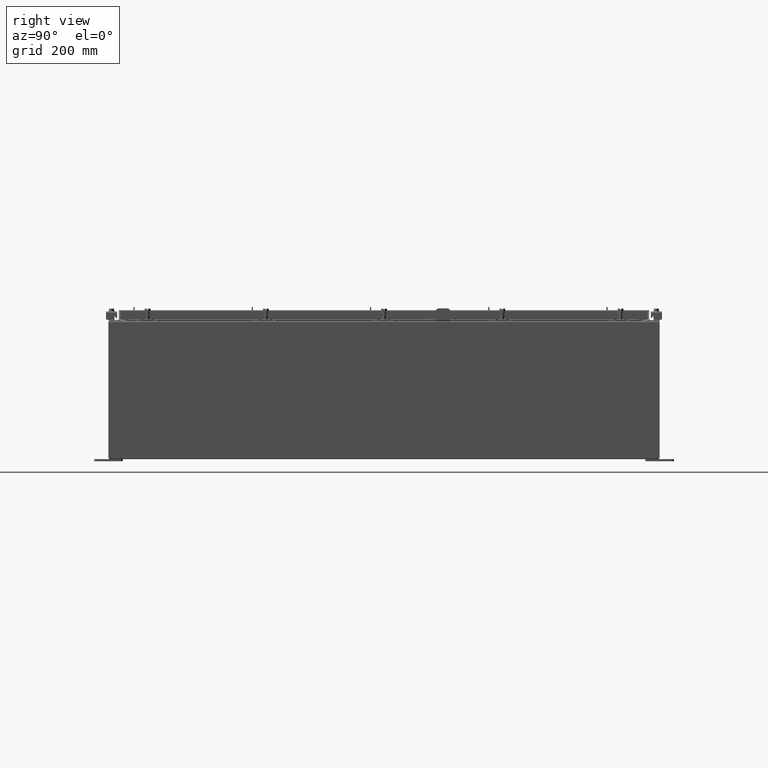
[diagram: clean part render]
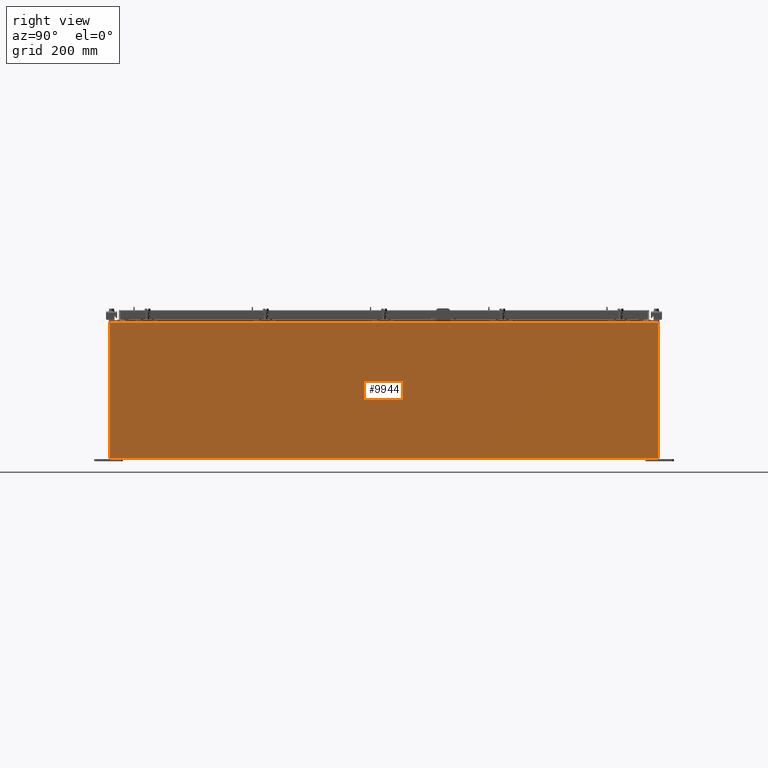
[diagram: same view with one face highlighted and labeled with its STEP entity id]
A machine part, right view. The second image highlights one B-rep face of the part: STEP entity #9944.
In plain terms, the highlighted planar face has unit normal (-1, 0, 0).
Its self-contained STEP definition (entity closure, byte-faithful):
#195 = VECTOR ( 'NONE', #417, 39.37007874015748100 ) ;
#417 = DIRECTION ( 'NONE',  ( -1.590339826456887700E-031, -1.000000000000000000, -4.567295697298285000E-017 ) ) ;
#587 = CARTESIAN_POINT ( 'NONE',  ( 17.99999999999999600, -23.92529999999998900, -6.293710784286996200E-014 ) ) ;
#1613 = DIRECTION ( 'NONE',  ( 3.482016343714355100E-015, 0.0000000000000000000, 1.000000000000000000 ) ) ;
#1859 = LINE ( 'NONE', #7869, #6873 ) ;
#2365 = VERTEX_POINT ( 'NONE', #3868 ) ;
#3512 = ORIENTED_EDGE ( 'NONE', *, *, #24194, .F. ) ;
#3601 = VECTOR ( 'NONE', #4806, 39.37007874015748100 ) ;
#3702 = PLANE ( 'NONE',  #11886 ) ;
#3868 = CARTESIAN_POINT ( 'NONE',  ( 17.99999999999999600, -23.92529999999998900, 0.01299999999999897800 ) ) ;
#4806 = DIRECTION ( 'NONE',  ( -3.482016343714355500E-015, 0.0000000000000000000, -1.000000000000000000 ) ) ;
#6506 = LINE ( 'NONE', #15295, #195 ) ;
#6873 = VECTOR ( 'NONE', #24745, 39.37007874015748100 ) ;
#7860 = EDGE_CURVE ( 'NONE', #9847, #2365, #14895, .T. ) ;
#7869 = CARTESIAN_POINT ( 'NONE',  ( 17.99999999999999600, 23.92529999999998900, -6.293710784286996200E-014 ) ) ;
#7940 = CARTESIAN_POINT ( 'NONE',  ( 17.99999999999999600, 0.0000000000000000000, -6.293710784286996200E-014 ) ) ;
#8734 = EDGE_CURVE ( 'NONE', #20948, #21966, #1859, .T. ) ;
#9847 = VERTEX_POINT ( 'NONE', #22553 ) ;
#9944 = ADVANCED_FACE ( 'NONE', ( #23652 ), #3702, .F. ) ;
#11703 = VECTOR ( 'NONE', #17536, 39.37007874015748100 ) ;
#11886 = AXIS2_PLACEMENT_3D ( 'NONE', #7940, #14379, #1613 ) ;
#14379 = DIRECTION ( 'NONE',  ( -1.000000000000000000, 0.0000000000000000000, 3.482016343714355100E-015 ) ) ;
#14389 = ORIENTED_EDGE ( 'NONE', *, *, #16988, .T. ) ;
#14895 = LINE ( 'NONE', #587, #3601 ) ;
#15295 = CARTESIAN_POINT ( 'NONE',  ( 17.99999999999999600, -23.92529999999998900, 0.01299999999999984700 ) ) ;
#16240 = ORIENTED_EDGE ( 'NONE', *, *, #8734, .T. ) ;
#16400 = CARTESIAN_POINT ( 'NONE',  ( 18.00000000000003900, 23.92529999999998600, 11.83760000000000200 ) ) ;
#16685 = LINE ( 'NONE', #23755, #11703 ) ;
#16988 = EDGE_CURVE ( 'NONE', #21966, #9847, #16685, .T. ) ;
#17536 = DIRECTION ( 'NONE',  ( -0.0000000000000000000, -1.000000000000000000, -0.0000000000000000000 ) ) ;
#18242 = EDGE_LOOP ( 'NONE', ( #14389, #23420, #3512, #16240 ) ) ;
#20948 = VERTEX_POINT ( 'NONE', #22963 ) ;
#21966 = VERTEX_POINT ( 'NONE', #16400 ) ;
#22553 = CARTESIAN_POINT ( 'NONE',  ( 18.00000000000003900, -23.92529999999998900, 11.83760000000000200 ) ) ;
#22963 = CARTESIAN_POINT ( 'NONE',  ( 17.99999999999999600, 23.92529999999998600, 0.01300000000000203200 ) ) ;
#23420 = ORIENTED_EDGE ( 'NONE', *, *, #7860, .T. ) ;
#23652 = FACE_OUTER_BOUND ( 'NONE', #18242, .T. ) ;
#23755 = CARTESIAN_POINT ( 'NONE',  ( 18.00000000000003900, 23.92529999999998900, 11.83760000000000200 ) ) ;
#24194 = EDGE_CURVE ( 'NONE', #20948, #2365, #6506, .T. ) ;
#24745 = DIRECTION ( 'NONE',  ( 3.482016343714355500E-015, 0.0000000000000000000, 1.000000000000000000 ) ) ;